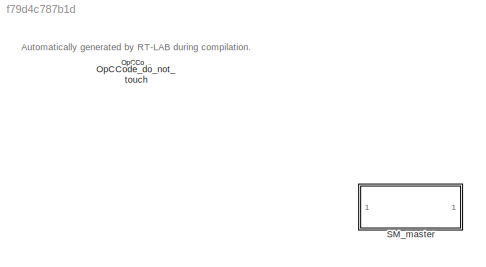
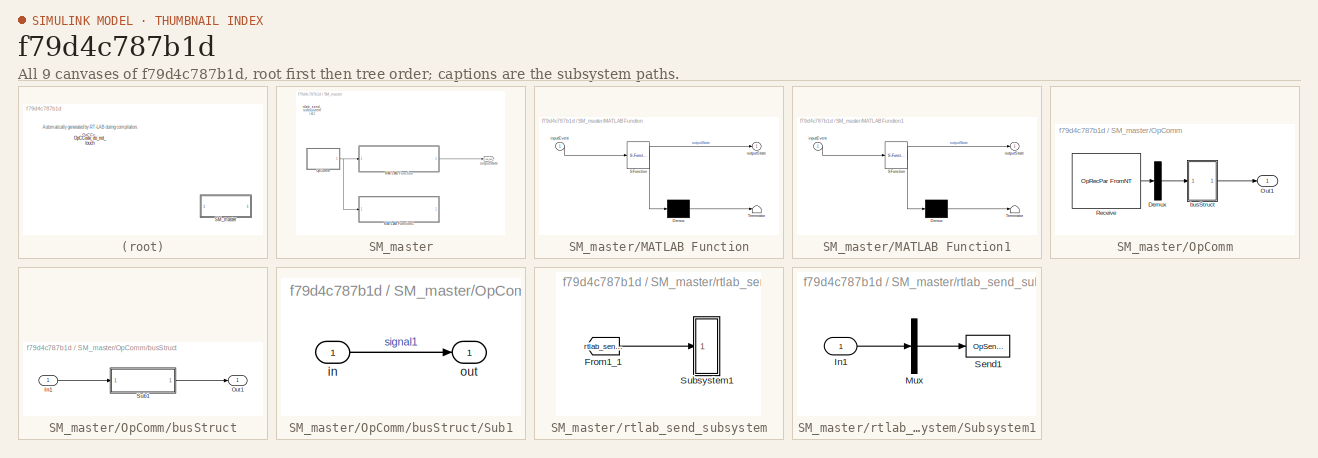
[diagram: thumbnail index - all 9 canvases of the model, root first then tree order]
MODEL slx_f79d4c787b1d
KIND model
CONFIG AbsTol = auto
CONFIG EnableMultiTasking = on
CONFIG FixedStep = 0.001
CONFIG MaxStep = auto
CONFIG MinStep = auto
CONFIG RelTol = 1e-3
CONFIG SampleTimeConstraint = Unconstrained
CONFIG SolverName = ode4
CONFIG StartTime = 0.0
CONFIG StopTime = inf
WORKSPACE source: MATLAB code (in-file)
WORKSPACE code: addpath src\model
WORKSPACE code: addpath src\utils
BLOCK [Reference] OpCCode_do_not_touch  REF=opal_lib/Communication/OpCCode
  Ports = []
  SourceBlock = opal_lib/Communication/OpCCode
BLOCK [SubSystem] SM_master
  Ports = []
  RequestExecContextInheritance = off
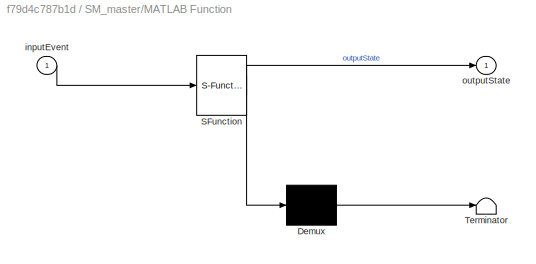
BLOCK [SubSystem] SM_master/MATLAB Function
  ErrorFcn = Stateflow.Translate.translate
  PermitHierarchicalResolution = ExplicitOnly
  Ports = [1, 1]
  RequestExecContextInheritance = off
  SFBlockType = MATLAB Function
  TreatAsAtomicUnit = on
BLOCK [Demux] SM_master/MATLAB Function/ Demux 
  Outputs = 1
  Ports = [1, 1]
BLOCK [S-Function] SM_master/MATLAB Function/ SFunction 
  EnableBusSupport = on
  FunctionName = sf_sfun
  PortCounts = [1 2]
  Ports = [1, 2]
  SFcnIsStateOwnerBlock = off
  SFunctionDeploymentMode = off
  Tag = Stateflow S-Function 2
BLOCK [Terminator] SM_master/MATLAB Function/ Terminator 
BLOCK [Inport] SM_master/MATLAB Function/inputEvent
BLOCK [Outport] SM_master/MATLAB Function/outputState
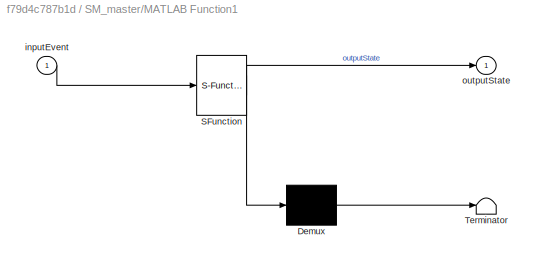
BLOCK [SubSystem] SM_master/MATLAB Function1
  Commented = on
  ErrorFcn = Stateflow.Translate.translate
  PermitHierarchicalResolution = ExplicitOnly
  Ports = [1, 1]
  RequestExecContextInheritance = off
  SFBlockType = MATLAB Function
  TreatAsAtomicUnit = on
BLOCK [Demux] SM_master/MATLAB Function1/ Demux 
  Outputs = 1
  Ports = [1, 1]
BLOCK [S-Function] SM_master/MATLAB Function1/ SFunction 
  EnableBusSupport = on
  FunctionName = sf_sfun
  PortCounts = [1 2]
  Ports = [1, 2]
  SFcnIsStateOwnerBlock = off
  SFunctionDeploymentMode = off
  Tag = Stateflow S-Function 1
BLOCK [Terminator] SM_master/MATLAB Function1/ Terminator 
BLOCK [Inport] SM_master/MATLAB Function1/inputEvent
BLOCK [Outport] SM_master/MATLAB Function1/outputState
BLOCK [SubSystem] SM_master/OpComm
  Ports = [0, 1]
  RequestExecContextInheritance = off
BLOCK [Demux] SM_master/OpComm/Demux
  Outputs = [1]
  Ports = [1, 1]
BLOCK [Outport] SM_master/OpComm/Out1
BLOCK [Reference] SM_master/OpComm/Receive  REF=opal_lib/Communication/OpRecPar
FromNT
  Ports = [0, 1]
  SourceBlock = opal_lib/Communication/OpRecPar\nFromNT
  SourceType = OPAL Receive Icon
BLOCK [SubSystem] SM_master/OpComm/busStruct
  Ports = [1, 1]
  RequestExecContextInheritance = off
BLOCK [Inport] SM_master/OpComm/busStruct/In1
BLOCK [Outport] SM_master/OpComm/busStruct/Out1
BLOCK [SubSystem] SM_master/OpComm/busStruct/Sub1
  Ports = [1, 1]
  RequestExecContextInheritance = off
BLOCK [Inport] SM_master/OpComm/busStruct/Sub1/in
BLOCK [Outport] SM_master/OpComm/busStruct/Sub1/out
BLOCK [Goto] SM_master/outputState
  GotoTag = rtlab_send_1
  TagVisibility = global
BLOCK [SubSystem] SM_master/rtlab_send_subsystem
  Ports = []
  Priority = -100
  RequestExecContextInheritance = off
BLOCK [From] SM_master/rtlab_send_subsystem/From1_1
  GotoTag = rtlab_send_1
  TagVisibility = global
BLOCK [SubSystem] SM_master/rtlab_send_subsystem/Subsystem1
  Ports = [1]
  RequestExecContextInheritance = off
BLOCK [Inport] SM_master/rtlab_send_subsystem/Subsystem1/In1
BLOCK [Mux] SM_master/rtlab_send_subsystem/Subsystem1/Mux
  Inputs = 1
  Ports = [1, 1]
BLOCK [Reference] SM_master/rtlab_send_subsystem/Subsystem1/Send1  REF=opal_lib/Communication/OpSendToNT
  Ports = [1]
  SourceBlock = opal_lib/Communication/OpSendToNT
  SourceType = OPAL Send Icon
ANNOTATION (root): Automatically generated by RT-LAB during compilation.
LINE SM_master/MATLAB Function:1 -> SM_master/outputState:1
LINE SM_master/OpComm/Demux:1 -> SM_master/OpComm/busStruct:1
LINE SM_master/OpComm/Receive:1 -> SM_master/OpComm/Demux:1
LINE SM_master/OpComm/busStruct/In1:1 -> SM_master/OpComm/busStruct/Sub1:1
LINE SM_master/OpComm/busStruct/Sub1/in:1 -> SM_master/OpComm/busStruct/Sub1/out:1
LINE SM_master/OpComm/busStruct/Sub1:1 -> SM_master/OpComm/busStruct/Out1:1
LINE SM_master/OpComm/busStruct:1 -> SM_master/OpComm/Out1:1
NET SM_master/OpComm:1 -> SM_master/MATLAB Function1:1, SM_master/MATLAB Function:1
LINE SM_master/rtlab_send_subsystem/From1_1:1 -> SM_master/rtlab_send_subsystem/Subsystem1:1
LINE SM_master/rtlab_send_subsystem/Subsystem1/In1:1 -> SM_master/rtlab_send_subsystem/Subsystem1/Mux:1
LINE SM_master/rtlab_send_subsystem/Subsystem1/Mux:1 -> SM_master/rtlab_send_subsystem/Subsystem1/Send1:1
note: NET lines group one-source signal fan-out (src -> all destinations, sorted); 1:1 wires keep LINE
CHART SM_master/MATLAB Function states=1 transitions=1
  STATE_LABEL 'eML_blk_kernel()'
  STATE_LABEL "SCRIPT:\nfunction outputState   = stateMachineFcn(inputEvent)\n% Example of a State Machine with 3 states.\npersistent stateMachine\n\nif (isempty(stateMachine))\n    \n    % Create the states with the State Class.\n    s0 = State(0, 's0', [1,0,1,1,1]);\n    s1 = State(1, 's1', [1,1,0,1,1]);\n    s2 = State(2, 's2', [1,0,1,1,1]);\n\n    % Group it in a cell array.\n    statesArray = {s0, s1, s2};\n\n    % Transi...<+515ch>"
CHART SM_master/MATLAB Function1 states=1 transitions=1
  STATE_LABEL 'eML_blk_kernel()'
  STATE_LABEL "SCRIPT:\nfunction outputState   = stateMachineDebug(inputEvent)\n% Example of a State Machine with 3 states.\npersistent stateMachine\npersistent statesArray\npersistent transitions\npersistent stateNumber\npersistent stateIndex\npersistent numberOfStates\npersistent eventsArray\n\nif (isempty(stateMachine))\n    stateMachine = 1;\n    % Create the states with the State Class.\n    s0 = State(0, 's0', [1,0,1,1,...<+858ch>"
CHART  states=0 transitions=0
CHART  states=0 transitions=0
